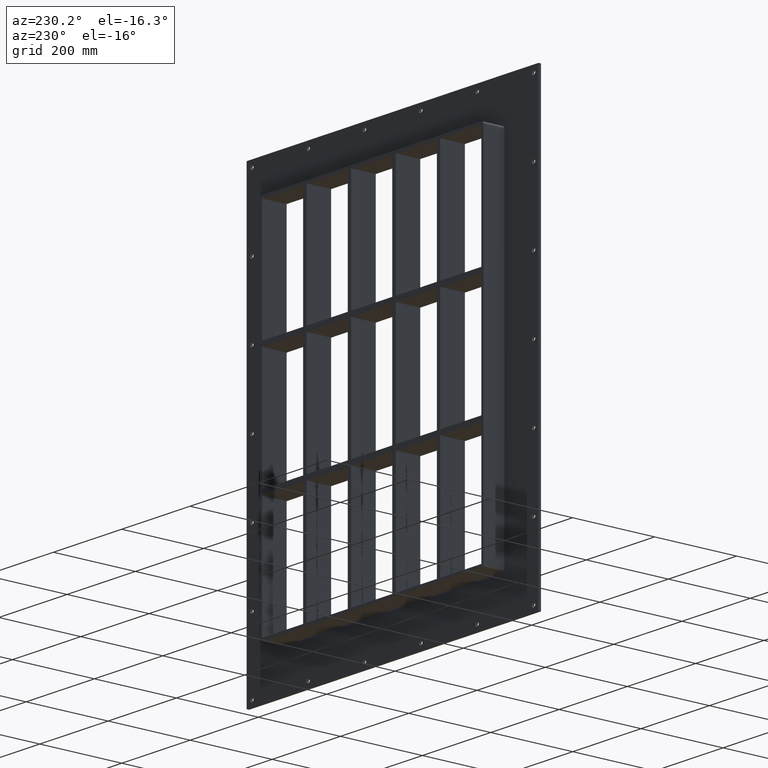
[diagram: clean part render]
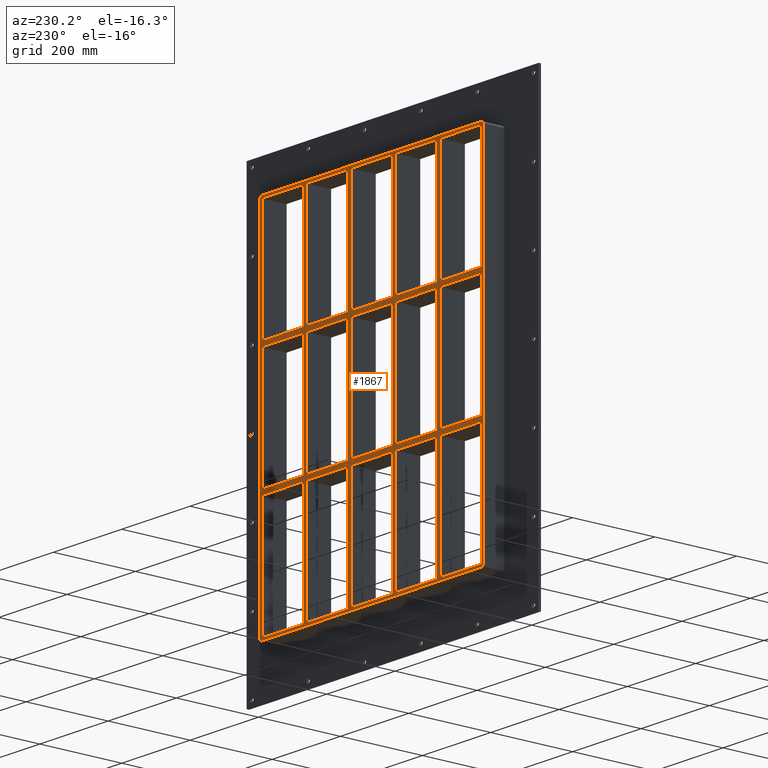
[diagram: same view with one face highlighted and labeled with its STEP entity id]
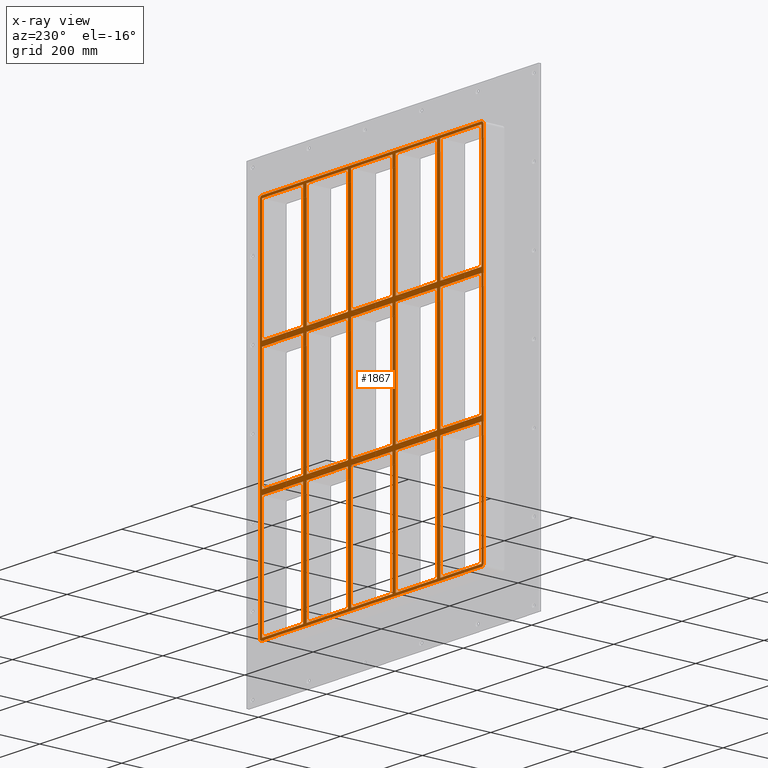
[diagram: x-ray of the same camera — body ghosted, the highlighted face saturated]
A machine part, auxiliary view. The second image highlights one B-rep face of the part: STEP entity #1867.
The next image is the same camera in x-ray: the body ghosted, the highlighted face saturated — about 0% of this face is hidden behind the body in this view.
In plain terms, the highlighted planar face has unit normal (0, 1, 0).
Its self-contained STEP definition (entity closure, byte-faithful):
#691=CARTESIAN_POINT('',(-200.75000000000131,57.0,138.99999999999068));
#692=VERTEX_POINT('',#691);
#707=CARTESIAN_POINT('',(-321.24999999999966,57.0,138.99999999999068));
#708=VERTEX_POINT('',#707);
#715=CARTESIAN_POINT('',(-200.75000000000136,57.0,138.99999999999068));
#716=DIRECTION('',(-1.0,0.0,0.0));
#717=VECTOR('',#716,120.49999999999841);
#718=LINE('',#715,#717);
#719=EDGE_CURVE('',#692,#708,#718,.T.);
#731=CARTESIAN_POINT('',(-70.250000000001265,57.0,138.99999999999071));
#732=VERTEX_POINT('',#731);
#747=CARTESIAN_POINT('',(-190.75000000000728,57.0,138.99999999999068));
#748=VERTEX_POINT('',#747);
#755=CARTESIAN_POINT('',(-70.250000000001251,57.0,138.99999999999068));
#756=DIRECTION('',(-1.0,0.0,0.0));
#757=VECTOR('',#756,120.50000000000603);
#758=LINE('',#755,#757);
#759=EDGE_CURVE('',#732,#748,#758,.T.);
#771=CARTESIAN_POINT('',(60.249999999998707,57.0,138.99999999999071));
#772=VERTEX_POINT('',#771);
#787=CARTESIAN_POINT('',(-60.250000000007304,57.0,138.99999999999071));
#788=VERTEX_POINT('',#787);
#795=CARTESIAN_POINT('',(60.249999999998693,57.0,138.99999999999068));
#796=DIRECTION('',(-1.0,0.0,0.0));
#797=VECTOR('',#796,120.50000000000597);
#798=LINE('',#795,#797);
#799=EDGE_CURVE('',#772,#788,#798,.T.);
#809=CARTESIAN_POINT('',(200.74999999999278,57.0,138.99999999999071));
#810=VERTEX_POINT('',#809);
#819=CARTESIAN_POINT('',(321.25000000000006,57.0,138.99999999999071));
#820=VERTEX_POINT('',#819);
#821=CARTESIAN_POINT('',(321.25,57.0,138.99999999999071));
#822=DIRECTION('',(-1.0,0.0,0.0));
#823=VECTOR('',#822,120.50000000000722);
#824=LINE('',#821,#823);
#825=EDGE_CURVE('',#820,#810,#824,.T.);
#851=CARTESIAN_POINT('',(190.74999999999875,57.0,138.99999999999071));
#852=VERTEX_POINT('',#851);
#867=CARTESIAN_POINT('',(70.249999999992738,57.0,138.99999999999071));
#868=VERTEX_POINT('',#867);
#875=CARTESIAN_POINT('',(190.74999999999875,57.0,138.99999999999071));
#876=DIRECTION('',(-1.0,0.0,0.0));
#877=VECTOR('',#876,120.50000000000603);
#878=LINE('',#875,#877);
#879=EDGE_CURVE('',#852,#868,#878,.T.);
#889=CARTESIAN_POINT('',(-200.75000000000131,57.0,150.99999999999994));
#890=VERTEX_POINT('',#889);
#899=CARTESIAN_POINT('',(-321.24999999999966,57.0,150.99999999999994));
#900=VERTEX_POINT('',#899);
#901=CARTESIAN_POINT('',(-321.24999999999966,57.0,150.99999999999994));
#902=DIRECTION('',(1.0,0.0,0.0));
#903=VECTOR('',#902,120.49999999999835);
#904=LINE('',#901,#903);
#905=EDGE_CURVE('',#900,#890,#904,.T.);
#931=CARTESIAN_POINT('',(200.74999999999278,57.0,150.99999999999994));
#932=VERTEX_POINT('',#931);
#947=CARTESIAN_POINT('',(321.25000000000006,57.0,150.99999999999994));
#948=VERTEX_POINT('',#947);
#955=CARTESIAN_POINT('',(200.74999999999272,57.0,150.99999999999994));
#956=DIRECTION('',(1.0,0.0,0.0));
#957=VECTOR('',#956,120.50000000000739);
#958=LINE('',#955,#957);
#959=EDGE_CURVE('',#932,#948,#958,.T.);
#969=CARTESIAN_POINT('',(-70.250000000001307,57.0,150.99999999999994));
#970=VERTEX_POINT('',#969);
#979=CARTESIAN_POINT('',(-190.75000000000728,57.0,150.99999999999994));
#980=VERTEX_POINT('',#979);
#981=CARTESIAN_POINT('',(-190.75000000000728,57.0,150.99999999999994));
#982=DIRECTION('',(1.0,0.0,0.0));
#983=VECTOR('',#982,120.50000000000597);
#984=LINE('',#981,#983);
#985=EDGE_CURVE('',#980,#970,#984,.T.);
#1009=CARTESIAN_POINT('',(60.249999999998707,57.0,150.99999999999994));
#1010=VERTEX_POINT('',#1009);
#1019=CARTESIAN_POINT('',(-60.250000000007269,57.0,150.99999999999994));
#1020=VERTEX_POINT('',#1019);
#1021=CARTESIAN_POINT('',(-60.250000000007276,57.0,150.99999999999994));
#1022=DIRECTION('',(1.0,0.0,0.0));
#1023=VECTOR('',#1022,120.50000000000597);
#1024=LINE('',#1021,#1023);
#1025=EDGE_CURVE('',#1020,#1010,#1024,.T.);
#1049=CARTESIAN_POINT('',(190.74999999999875,57.0,150.99999999999994));
#1050=VERTEX_POINT('',#1049);
#1059=CARTESIAN_POINT('',(70.249999999992738,57.0,150.99999999999994));
#1060=VERTEX_POINT('',#1059);
#1061=CARTESIAN_POINT('',(70.249999999992724,57.0,150.99999999999994));
#1062=DIRECTION('',(1.0,0.0,0.0));
#1063=VECTOR('',#1062,120.50000000000603);
#1064=LINE('',#1061,#1063);
#1065=EDGE_CURVE('',#1060,#1050,#1064,.T.);
#1090=CARTESIAN_POINT('',(-321.24999999999994,57.0,429.00000000000006));
#1091=VERTEX_POINT('',#1090);
#1092=CARTESIAN_POINT('',(-321.25,57.0,429.00000000000011));
#1093=DIRECTION('',(0.0,0.0,-1.0));
#1094=VECTOR('',#1093,278.00000000000011);
#1095=LINE('',#1092,#1094);
#1096=EDGE_CURVE('',#1091,#900,#1095,.T.);
#1121=CARTESIAN_POINT('',(321.25000000000006,57.0,-139.00000000000006));
#1122=VERTEX_POINT('',#1121);
#1123=CARTESIAN_POINT('',(321.25000000000006,57.0,-139.00000000000006));
#1124=DIRECTION('',(0.0,0.0,1.0));
#1125=VECTOR('',#1124,277.99999999999079);
#1126=LINE('',#1123,#1125);
#1127=EDGE_CURVE('',#1122,#820,#1126,.T.);
#1160=CARTESIAN_POINT('',(321.25000000000006,57.0,429.00000000000006));
#1161=VERTEX_POINT('',#1160);
#1168=CARTESIAN_POINT('',(321.25000000000006,57.0,150.99999999999994));
#1169=DIRECTION('',(0.0,0.0,1.0));
#1170=VECTOR('',#1169,278.00000000000011);
#1171=LINE('',#1168,#1170);
#1172=EDGE_CURVE('',#948,#1161,#1171,.T.);
#1191=CARTESIAN_POINT('',(190.74999999999872,57.0,429.00000000000006));
#1192=VERTEX_POINT('',#1191);
#1199=CARTESIAN_POINT('',(190.74999999999872,57.0,150.99999999999994));
#1200=DIRECTION('',(0.0,0.0,1.0));
#1201=VECTOR('',#1200,278.00000000000011);
#1202=LINE('',#1199,#1201);
#1203=EDGE_CURVE('',#1050,#1192,#1202,.T.);
#1214=CARTESIAN_POINT('',(200.74999999999278,57.0,429.00000000000006));
#1215=VERTEX_POINT('',#1214);
#1216=CARTESIAN_POINT('',(200.74999999999278,57.0,429.00000000000006));
#1217=DIRECTION('',(0.0,0.0,-1.0));
#1218=VECTOR('',#1217,278.00000000000011);
#1219=LINE('',#1216,#1218);
#1220=EDGE_CURVE('',#1215,#932,#1219,.T.);
#1253=CARTESIAN_POINT('',(60.249999999998671,57.0,429.00000000000006));
#1254=VERTEX_POINT('',#1253);
#1261=CARTESIAN_POINT('',(60.249999999998707,57.0,150.99999999999994));
#1262=DIRECTION('',(0.0,0.0,1.0));
#1263=VECTOR('',#1262,278.00000000000011);
#1264=LINE('',#1261,#1263);
#1265=EDGE_CURVE('',#1010,#1254,#1264,.T.);
#1276=CARTESIAN_POINT('',(70.249999999992738,57.0,429.00000000000006));
#1277=VERTEX_POINT('',#1276);
#1278=CARTESIAN_POINT('',(70.249999999992738,57.0,429.00000000000006));
#1279=DIRECTION('',(0.0,0.0,-1.0));
#1280=VECTOR('',#1279,278.00000000000011);
#1281=LINE('',#1278,#1280);
#1282=EDGE_CURVE('',#1277,#1060,#1281,.T.);
#1315=CARTESIAN_POINT('',(-70.250000000001336,57.0,429.00000000000006));
#1316=VERTEX_POINT('',#1315);
#1323=CARTESIAN_POINT('',(-70.250000000001293,57.0,150.99999999999994));
#1324=DIRECTION('',(0.0,0.0,1.0));
#1325=VECTOR('',#1324,278.00000000000011);
#1326=LINE('',#1323,#1325);
#1327=EDGE_CURVE('',#970,#1316,#1326,.T.);
#1338=CARTESIAN_POINT('',(-60.250000000007269,57.0,429.00000000000006));
#1339=VERTEX_POINT('',#1338);
#1340=CARTESIAN_POINT('',(-60.250000000007269,57.0,429.00000000000006));
#1341=DIRECTION('',(0.0,0.0,-1.0));
#1342=VECTOR('',#1341,278.00000000000011);
#1343=LINE('',#1340,#1342);
#1344=EDGE_CURVE('',#1339,#1020,#1343,.T.);
#1377=CARTESIAN_POINT('',(-200.75000000000134,57.0,429.00000000000006));
#1378=VERTEX_POINT('',#1377);
#1385=CARTESIAN_POINT('',(-200.75000000000134,57.0,150.99999999999994));
#1386=DIRECTION('',(0.0,0.0,1.0));
#1387=VECTOR('',#1386,278.00000000000011);
#1388=LINE('',#1385,#1387);
#1389=EDGE_CURVE('',#890,#1378,#1388,.T.);
#1400=CARTESIAN_POINT('',(-200.75000000000128,57.0,-139.00000000000006));
#1401=VERTEX_POINT('',#1400);
#1402=CARTESIAN_POINT('',(-200.75000000000128,57.0,-139.00000000000006));
#1403=DIRECTION('',(0.0,0.0,1.0));
#1404=VECTOR('',#1403,277.99999999999068);
#1405=LINE('',#1402,#1404);
#1406=EDGE_CURVE('',#1401,#692,#1405,.T.);
#1431=CARTESIAN_POINT('',(-190.75000000000728,57.0,429.00000000000006));
#1432=VERTEX_POINT('',#1431);
#1433=CARTESIAN_POINT('',(-190.75000000000728,57.0,429.00000000000006));
#1434=DIRECTION('',(0.0,0.0,-1.0));
#1435=VECTOR('',#1434,278.00000000000011);
#1436=LINE('',#1433,#1435);
#1437=EDGE_CURVE('',#1432,#980,#1436,.T.);
#1456=CARTESIAN_POINT('',(-7.118245E-014,57.0,7.830186E-014));
#1457=DIRECTION('',(0.0,1.0,0.0));
#1458=DIRECTION('',(0.0,0.0,1.0));
#1459=AXIS2_PLACEMENT_3D('',#1456,#1457,#1458);
#1460=PLANE('',#1459);
#1461=CARTESIAN_POINT('',(321.25,57.0,-435.0));
#1462=VERTEX_POINT('',#1461);
#1463=CARTESIAN_POINT('',(327.24999999999994,57.0,-428.99999999999989));
#1464=VERTEX_POINT('',#1463);
#1465=CARTESIAN_POINT('',(321.25,57.0,-428.99999999999989));
#1466=DIRECTION('',(0.0,-1.0,0.0));
#1467=DIRECTION('',(0.707106781186539,0.0,-0.707106781186556));
#1468=AXIS2_PLACEMENT_3D('',#1465,#1466,#1467);
#1469=CIRCLE('',#1468,6.000000000000001);
#1470=EDGE_CURVE('',#1462,#1464,#1469,.T.);
#1471=ORIENTED_EDGE('',*,*,#1470,.F.);
#1472=CARTESIAN_POINT('',(-321.25,57.0,-435.0));
#1473=VERTEX_POINT('',#1472);
#1474=CARTESIAN_POINT('',(321.25,57.0,-435.0));
#1475=DIRECTION('',(-1.0,0.0,0.0));
#1476=VECTOR('',#1475,642.5);
#1477=LINE('',#1474,#1476);
#1478=EDGE_CURVE('',#1462,#1473,#1477,.T.);
#1479=ORIENTED_EDGE('',*,*,#1478,.T.);
#1480=CARTESIAN_POINT('',(-327.25000000000011,57.0,-429.00000000000006));
#1481=VERTEX_POINT('',#1480);
#1482=CARTESIAN_POINT('',(-321.25,57.0,-429.00000000000006));
#1483=DIRECTION('',(0.0,-1.0,0.0));
#1484=DIRECTION('',(-0.707106781186556,0.0,-0.707106781186539));
#1485=AXIS2_PLACEMENT_3D('',#1482,#1483,#1484);
#1486=CIRCLE('',#1485,6.000000000000001);
#1487=EDGE_CURVE('',#1481,#1473,#1486,.T.);
#1488=ORIENTED_EDGE('',*,*,#1487,.F.);
#1489=CARTESIAN_POINT('',(-327.25000000000011,57.0,429.00000000000006));
#1490=VERTEX_POINT('',#1489);
#1491=CARTESIAN_POINT('',(-327.25000000000011,57.0,-429.00000000000006));
#1492=DIRECTION('',(0.0,0.0,1.0));
#1493=VECTOR('',#1492,858.0);
#1494=LINE('',#1491,#1493);
#1495=EDGE_CURVE('',#1481,#1490,#1494,.T.);
#1496=ORIENTED_EDGE('',*,*,#1495,.T.);
#1497=CARTESIAN_POINT('',(-321.25000000000011,57.0,435.00000000000011));
#1498=VERTEX_POINT('',#1497);
#1499=CARTESIAN_POINT('',(-321.25000000000011,57.0,429.00000000000006));
#1500=DIRECTION('',(0.0,-1.0,0.0));
#1501=DIRECTION('',(-0.707106781186539,0.0,0.707106781186556));
#1502=AXIS2_PLACEMENT_3D('',#1499,#1500,#1501);
#1503=CIRCLE('',#1502,6.000000000000001);
#1504=EDGE_CURVE('',#1498,#1490,#1503,.T.);
#1505=ORIENTED_EDGE('',*,*,#1504,.F.);
#1506=CARTESIAN_POINT('',(321.24999999999989,57.0,435.00000000000011));
#1507=VERTEX_POINT('',#1506);
#1508=CARTESIAN_POINT('',(-321.25000000000017,57.0,435.00000000000011));
#1509=DIRECTION('',(1.0,0.0,0.0));
#1510=VECTOR('',#1509,642.5);
#1511=LINE('',#1508,#1510);
#1512=EDGE_CURVE('',#1498,#1507,#1511,.T.);
#1513=ORIENTED_EDGE('',*,*,#1512,.T.);
#1514=CARTESIAN_POINT('',(327.24999999999994,57.0,429.00000000000011));
#1515=VERTEX_POINT('',#1514);
#1516=CARTESIAN_POINT('',(321.24999999999989,57.0,429.00000000000011));
#1517=DIRECTION('',(0.0,-1.0,0.0));
#1518=DIRECTION('',(0.707106781186547,0.0,0.707106781186547));
#1519=AXIS2_PLACEMENT_3D('',#1516,#1517,#1518);
#1520=CIRCLE('',#1519,6.0);
#1521=EDGE_CURVE('',#1515,#1507,#1520,.T.);
#1522=ORIENTED_EDGE('',*,*,#1521,.F.);
#1523=CARTESIAN_POINT('',(327.24999999999994,57.0,429.00000000000011));
#1524=DIRECTION('',(0.0,0.0,-1.0));
#1525=VECTOR('',#1524,858.0);
#1526=LINE('',#1523,#1525);
#1527=EDGE_CURVE('',#1515,#1464,#1526,.T.);
#1528=ORIENTED_EDGE('',*,*,#1527,.T.);
#1529=EDGE_LOOP('',(#1471,#1479,#1488,#1496,#1505,#1513,#1522,#1528));
#1530=FACE_OUTER_BOUND('',#1529,.T.);
#1531=CARTESIAN_POINT('',(-321.24999999999966,57.0,-139.00000000000006));
#1532=VERTEX_POINT('',#1531);
#1533=CARTESIAN_POINT('',(-321.25,57.0,138.99999999999068));
#1534=DIRECTION('',(0.0,0.0,-1.0));
#1535=VECTOR('',#1534,277.99999999999073);
#1536=LINE('',#1533,#1535);
#1537=EDGE_CURVE('',#708,#1532,#1536,.T.);
#1538=ORIENTED_EDGE('',*,*,#1537,.T.);
#1539=CARTESIAN_POINT('',(-321.24999999999966,57.0,-139.00000000000006));
#1540=DIRECTION('',(1.0,0.0,0.0));
#1541=VECTOR('',#1540,120.49999999999838);
#1542=LINE('',#1539,#1541);
#1543=EDGE_CURVE('',#1532,#1401,#1542,.T.);
#1544=ORIENTED_EDGE('',*,*,#1543,.T.);
#1545=ORIENTED_EDGE('',*,*,#1406,.T.);
#1546=ORIENTED_EDGE('',*,*,#719,.T.);
#1547=EDGE_LOOP('',(#1538,#1544,#1545,#1546));
#1548=FACE_BOUND('',#1547,.T.);
#1549=ORIENTED_EDGE('',*,*,#1172,.T.);
#1550=CARTESIAN_POINT('',(321.25000000000011,57.0,429.00000000000006));
#1551=DIRECTION('',(-1.0,0.0,0.0));
#1552=VECTOR('',#1551,120.50000000000736);
#1553=LINE('',#1550,#1552);
#1554=EDGE_CURVE('',#1161,#1215,#1553,.T.);
#1555=ORIENTED_EDGE('',*,*,#1554,.T.);
#1556=ORIENTED_EDGE('',*,*,#1220,.T.);
#1557=ORIENTED_EDGE('',*,*,#959,.T.);
#1558=EDGE_LOOP('',(#1549,#1555,#1556,#1557));
#1559=FACE_BOUND('',#1558,.T.);
#1560=ORIENTED_EDGE('',*,*,#1203,.T.);
#1561=CARTESIAN_POINT('',(190.74999999999872,57.0,429.00000000000006));
#1562=DIRECTION('',(-1.0,0.0,0.0));
#1563=VECTOR('',#1562,120.50000000000597);
#1564=LINE('',#1561,#1563);
#1565=EDGE_CURVE('',#1192,#1277,#1564,.T.);
#1566=ORIENTED_EDGE('',*,*,#1565,.T.);
#1567=ORIENTED_EDGE('',*,*,#1282,.T.);
#1568=ORIENTED_EDGE('',*,*,#1065,.T.);
#1569=EDGE_LOOP('',(#1560,#1566,#1567,#1568));
#1570=FACE_BOUND('',#1569,.T.);
#1571=ORIENTED_EDGE('',*,*,#1265,.T.);
#1572=CARTESIAN_POINT('',(60.249999999998664,57.0,429.00000000000006));
#1573=DIRECTION('',(-1.0,0.0,0.0));
#1574=VECTOR('',#1573,120.50000000000593);
#1575=LINE('',#1572,#1574);
#1576=EDGE_CURVE('',#1254,#1339,#1575,.T.);
#1577=ORIENTED_EDGE('',*,*,#1576,.T.);
#1578=ORIENTED_EDGE('',*,*,#1344,.T.);
#1579=ORIENTED_EDGE('',*,*,#1025,.T.);
#1580=EDGE_LOOP('',(#1571,#1577,#1578,#1579));
#1581=FACE_BOUND('',#1580,.T.);
#1582=ORIENTED_EDGE('',*,*,#1327,.T.);
#1583=CARTESIAN_POINT('',(-70.250000000001336,57.0,429.00000000000006));
#1584=DIRECTION('',(-1.0,0.0,0.0));
#1585=VECTOR('',#1584,120.50000000000594);
#1586=LINE('',#1583,#1585);
#1587=EDGE_CURVE('',#1316,#1432,#1586,.T.);
#1588=ORIENTED_EDGE('',*,*,#1587,.T.);
#1589=ORIENTED_EDGE('',*,*,#1437,.T.);
#1590=ORIENTED_EDGE('',*,*,#985,.T.);
#1591=EDGE_LOOP('',(#1582,#1588,#1589,#1590));
#1592=FACE_BOUND('',#1591,.T.);
#1593=ORIENTED_EDGE('',*,*,#825,.T.);
#1594=CARTESIAN_POINT('',(200.74999999999278,57.0,-139.00000000000006));
#1595=VERTEX_POINT('',#1594);
#1596=CARTESIAN_POINT('',(200.74999999999278,57.0,138.99999999999073));
#1597=DIRECTION('',(0.0,0.0,-1.0));
#1598=VECTOR('',#1597,277.99999999999079);
#1599=LINE('',#1596,#1598);
#1600=EDGE_CURVE('',#810,#1595,#1599,.T.);
#1601=ORIENTED_EDGE('',*,*,#1600,.T.);
#1602=CARTESIAN_POINT('',(200.74999999999272,57.0,-139.00000000000006));
#1603=DIRECTION('',(1.0,0.0,0.0));
#1604=VECTOR('',#1603,120.50000000000739);
#1605=LINE('',#1602,#1604);
#1606=EDGE_CURVE('',#1595,#1122,#1605,.T.);
#1607=ORIENTED_EDGE('',*,*,#1606,.T.);
#1608=ORIENTED_EDGE('',*,*,#1127,.T.);
#1609=EDGE_LOOP('',(#1593,#1601,#1607,#1608));
#1610=FACE_BOUND('',#1609,.T.);
#1611=ORIENTED_EDGE('',*,*,#879,.T.);
#1612=CARTESIAN_POINT('',(70.249999999992738,57.0,-139.00000000000006));
#1613=VERTEX_POINT('',#1612);
#1614=CARTESIAN_POINT('',(70.249999999992738,57.0,138.99999999999068));
#1615=DIRECTION('',(0.0,0.0,-1.0));
#1616=VECTOR('',#1615,277.99999999999073);
#1617=LINE('',#1614,#1616);
#1618=EDGE_CURVE('',#868,#1613,#1617,.T.);
#1619=ORIENTED_EDGE('',*,*,#1618,.T.);
#1620=CARTESIAN_POINT('',(190.74999999999878,57.0,-139.00000000000006));
#1621=VERTEX_POINT('',#1620);
#1622=CARTESIAN_POINT('',(70.249999999992724,57.0,-139.00000000000006));
#1623=DIRECTION('',(1.0,0.0,0.0));
#1624=VECTOR('',#1623,120.50000000000608);
#1625=LINE('',#1622,#1624);
#1626=EDGE_CURVE('',#1613,#1621,#1625,.T.);
#1627=ORIENTED_EDGE('',*,*,#1626,.T.);
#1628=CARTESIAN_POINT('',(190.74999999999878,57.0,-139.00000000000006));
#1629=DIRECTION('',(0.0,0.0,1.0));
#1630=VECTOR('',#1629,277.99999999999068);
#1631=LINE('',#1628,#1630);
#1632=EDGE_CURVE('',#1621,#852,#1631,.T.);
#1633=ORIENTED_EDGE('',*,*,#1632,.T.);
#1634=EDGE_LOOP('',(#1611,#1619,#1627,#1633));
#1635=FACE_BOUND('',#1634,.T.);
#1636=ORIENTED_EDGE('',*,*,#799,.T.);
#1637=CARTESIAN_POINT('',(-60.250000000007269,57.0,-139.00000000000006));
#1638=VERTEX_POINT('',#1637);
#1639=CARTESIAN_POINT('',(-60.250000000007269,57.0,138.99999999999068));
#1640=DIRECTION('',(0.0,0.0,-1.0));
#1641=VECTOR('',#1640,277.99999999999073);
#1642=LINE('',#1639,#1641);
#1643=EDGE_CURVE('',#788,#1638,#1642,.T.);
#1644=ORIENTED_EDGE('',*,*,#1643,.T.);
#1645=CARTESIAN_POINT('',(60.249999999998742,57.0,-139.00000000000006));
#1646=VERTEX_POINT('',#1645);
#1647=CARTESIAN_POINT('',(-60.250000000007276,57.0,-139.00000000000006));
#1648=DIRECTION('',(1.0,0.0,0.0));
#1649=VECTOR('',#1648,120.50000000000597);
#1650=LINE('',#1647,#1649);
#1651=EDGE_CURVE('',#1638,#1646,#1650,.T.);
#1652=ORIENTED_EDGE('',*,*,#1651,.T.);
#1653=CARTESIAN_POINT('',(60.249999999998742,57.0,-139.00000000000006));
#1654=DIRECTION('',(0.0,0.0,1.0));
#1655=VECTOR('',#1654,277.99999999999068);
#1656=LINE('',#1653,#1655);
#1657=EDGE_CURVE('',#1646,#772,#1656,.T.);
#1658=ORIENTED_EDGE('',*,*,#1657,.T.);
#1659=EDGE_LOOP('',(#1636,#1644,#1652,#1658));
#1660=FACE_BOUND('',#1659,.T.);
#1661=ORIENTED_EDGE('',*,*,#759,.T.);
#1662=CARTESIAN_POINT('',(-190.75000000000728,57.0,-139.00000000000006));
#1663=VERTEX_POINT('',#1662);
#1664=CARTESIAN_POINT('',(-190.75000000000728,57.0,138.99999999999068));
#1665=DIRECTION('',(0.0,0.0,-1.0));
#1666=VECTOR('',#1665,277.99999999999073);
#1667=LINE('',#1664,#1666);
#1668=EDGE_CURVE('',#748,#1663,#1667,.T.);
#1669=ORIENTED_EDGE('',*,*,#1668,.T.);
#1670=CARTESIAN_POINT('',(-70.250000000001265,57.0,-139.00000000000006));
#1671=VERTEX_POINT('',#1670);
#1672=CARTESIAN_POINT('',(-190.75000000000728,57.0,-139.00000000000006));
#1673=DIRECTION('',(1.0,0.0,0.0));
#1674=VECTOR('',#1673,120.500000000006);
#1675=LINE('',#1672,#1674);
#1676=EDGE_CURVE('',#1663,#1671,#1675,.T.);
#1677=ORIENTED_EDGE('',*,*,#1676,.T.);
#1678=CARTESIAN_POINT('',(-70.250000000001265,57.0,-139.00000000000006));
#1679=DIRECTION('',(0.0,0.0,1.0));
#1680=VECTOR('',#1679,277.99999999999068);
#1681=LINE('',#1678,#1680);
#1682=EDGE_CURVE('',#1671,#732,#1681,.T.);
#1683=ORIENTED_EDGE('',*,*,#1682,.T.);
#1684=EDGE_LOOP('',(#1661,#1669,#1677,#1683));
#1685=FACE_BOUND('',#1684,.T.);
#1686=CARTESIAN_POINT('',(-321.24999999999966,57.0,-151.00000000000932));
#1687=VERTEX_POINT('',#1686);
#1688=CARTESIAN_POINT('',(-321.24999999999994,57.0,-429.00000000000006));
#1689=VERTEX_POINT('',#1688);
#1690=CARTESIAN_POINT('',(-321.25,57.0,-151.00000000000932));
#1691=DIRECTION('',(0.0,0.0,-1.0));
#1692=VECTOR('',#1691,277.99999999999073);
#1693=LINE('',#1690,#1692);
#1694=EDGE_CURVE('',#1687,#1689,#1693,.T.);
#1695=ORIENTED_EDGE('',*,*,#1694,.T.);
#1696=CARTESIAN_POINT('',(-200.75000000000125,57.0,-429.00000000000006));
#1697=VERTEX_POINT('',#1696);
#1698=CARTESIAN_POINT('',(-321.24999999999994,57.0,-429.00000000000006));
#1699=DIRECTION('',(1.0,0.0,0.0));
#1700=VECTOR('',#1699,120.49999999999869);
#1701=LINE('',#1698,#1700);
#1702=EDGE_CURVE('',#1689,#1697,#1701,.T.);
#1703=ORIENTED_EDGE('',*,*,#1702,.T.);
#1704=CARTESIAN_POINT('',(-200.75000000000125,57.0,-151.00000000000932));
#1705=VERTEX_POINT('',#1704);
#1706=CARTESIAN_POINT('',(-200.75000000000125,57.0,-429.00000000000006));
#1707=DIRECTION('',(0.0,0.0,1.0));
#1708=VECTOR('',#1707,277.99999999999073);
#1709=LINE('',#1706,#1708);
#1710=EDGE_CURVE('',#1697,#1705,#1709,.T.);
#1711=ORIENTED_EDGE('',*,*,#1710,.T.);
#1712=CARTESIAN_POINT('',(-200.75000000000125,57.0,-151.00000000000932));
#1713=DIRECTION('',(-1.0,0.0,0.0));
#1714=VECTOR('',#1713,120.49999999999852);
#1715=LINE('',#1712,#1714);
#1716=EDGE_CURVE('',#1705,#1687,#1715,.T.);
#1717=ORIENTED_EDGE('',*,*,#1716,.T.);
#1718=EDGE_LOOP('',(#1695,#1703,#1711,#1717));
#1719=FACE_BOUND('',#1718,.T.);
#1720=CARTESIAN_POINT('',(-70.250000000001222,57.0,-429.00000000000006));
#1721=VERTEX_POINT('',#1720);
#1722=CARTESIAN_POINT('',(-70.250000000001265,57.0,-151.00000000000932));
#1723=VERTEX_POINT('',#1722);
#1724=CARTESIAN_POINT('',(-70.250000000001222,57.0,-429.00000000000006));
#1725=DIRECTION('',(0.0,0.0,1.0));
#1726=VECTOR('',#1725,277.99999999999073);
#1727=LINE('',#1724,#1726);
#1728=EDGE_CURVE('',#1721,#1723,#1727,.T.);
#1729=ORIENTED_EDGE('',*,*,#1728,.T.);
#1730=CARTESIAN_POINT('',(-190.75000000000728,57.0,-151.00000000000932));
#1731=VERTEX_POINT('',#1730);
#1732=CARTESIAN_POINT('',(-70.250000000001251,57.0,-151.00000000000932));
#1733=DIRECTION('',(-1.0,0.0,0.0));
#1734=VECTOR('',#1733,120.50000000000603);
#1735=LINE('',#1732,#1734);
#1736=EDGE_CURVE('',#1723,#1731,#1735,.T.);
#1737=ORIENTED_EDGE('',*,*,#1736,.T.);
#1738=CARTESIAN_POINT('',(-190.75000000000728,57.0,-428.99999999998431));
#1739=VERTEX_POINT('',#1738);
#1740=CARTESIAN_POINT('',(-190.75000000000728,57.0,-151.00000000000927));
#1741=DIRECTION('',(0.0,0.0,-1.0));
#1742=VECTOR('',#1741,277.99999999997499);
#1743=LINE('',#1740,#1742);
#1744=EDGE_CURVE('',#1731,#1739,#1743,.T.);
#1745=ORIENTED_EDGE('',*,*,#1744,.T.);
#1746=CARTESIAN_POINT('',(-190.75000000000728,57.0,-429.00000000000006));
#1747=DIRECTION('',(1.0,0.0,0.0));
#1748=VECTOR('',#1747,120.50000000000605);
#1749=LINE('',#1746,#1748);
#1750=EDGE_CURVE('',#1739,#1721,#1749,.T.);
#1751=ORIENTED_EDGE('',*,*,#1750,.T.);
#1752=EDGE_LOOP('',(#1729,#1737,#1745,#1751));
#1753=FACE_BOUND('',#1752,.T.);
#1754=CARTESIAN_POINT('',(60.249999999998778,57.0,-429.00000000000006));
#1755=VERTEX_POINT('',#1754);
#1756=CARTESIAN_POINT('',(60.249999999998742,57.0,-151.00000000000929));
#1757=VERTEX_POINT('',#1756);
#1758=CARTESIAN_POINT('',(60.249999999998778,57.0,-429.00000000000006));
#1759=DIRECTION('',(0.0,0.0,1.0));
#1760=VECTOR('',#1759,277.99999999999079);
#1761=LINE('',#1758,#1760);
#1762=EDGE_CURVE('',#1755,#1757,#1761,.T.);
#1763=ORIENTED_EDGE('',*,*,#1762,.T.);
#1764=CARTESIAN_POINT('',(-60.250000000007269,57.0,-151.00000000000932));
#1765=VERTEX_POINT('',#1764);
#1766=CARTESIAN_POINT('',(60.249999999998749,57.0,-151.00000000000932));
#1767=DIRECTION('',(-1.0,0.0,0.0));
#1768=VECTOR('',#1767,120.50000000000603);
#1769=LINE('',#1766,#1768);
#1770=EDGE_CURVE('',#1757,#1765,#1769,.T.);
#1771=ORIENTED_EDGE('',*,*,#1770,.T.);
#1772=CARTESIAN_POINT('',(-60.250000000007269,57.0,-428.99999999998431));
#1773=VERTEX_POINT('',#1772);
#1774=CARTESIAN_POINT('',(-60.250000000007269,57.0,-151.00000000000927));
#1775=DIRECTION('',(0.0,0.0,-1.0));
#1776=VECTOR('',#1775,277.99999999997499);
#1777=LINE('',#1774,#1776);
#1778=EDGE_CURVE('',#1765,#1773,#1777,.T.);
#1779=ORIENTED_EDGE('',*,*,#1778,.T.);
#1780=CARTESIAN_POINT('',(-60.250000000007276,57.0,-429.00000000000006));
#1781=DIRECTION('',(1.0,0.0,0.0));
#1782=VECTOR('',#1781,120.50000000000605);
#1783=LINE('',#1780,#1782);
#1784=EDGE_CURVE('',#1773,#1755,#1783,.T.);
#1785=ORIENTED_EDGE('',*,*,#1784,.T.);
#1786=EDGE_LOOP('',(#1763,#1771,#1779,#1785));
#1787=FACE_BOUND('',#1786,.T.);
#1788=CARTESIAN_POINT('',(190.74999999999881,57.0,-429.00000000000006));
#1789=VERTEX_POINT('',#1788);
#1790=CARTESIAN_POINT('',(190.74999999999878,57.0,-151.00000000000929));
#1791=VERTEX_POINT('',#1790);
#1792=CARTESIAN_POINT('',(190.74999999999881,57.0,-429.00000000000006));
#1793=DIRECTION('',(0.0,0.0,1.0));
#1794=VECTOR('',#1793,277.99999999999079);
#1795=LINE('',#1792,#1794);
#1796=EDGE_CURVE('',#1789,#1791,#1795,.T.);
#1797=ORIENTED_EDGE('',*,*,#1796,.T.);
#1798=CARTESIAN_POINT('',(70.249999999992738,57.0,-151.00000000000932));
#1799=VERTEX_POINT('',#1798);
#1800=CARTESIAN_POINT('',(190.74999999999878,57.0,-151.00000000000929));
#1801=DIRECTION('',(-1.0,0.0,0.0));
#1802=VECTOR('',#1801,120.50000000000605);
#1803=LINE('',#1800,#1802);
#1804=EDGE_CURVE('',#1791,#1799,#1803,.T.);
#1805=ORIENTED_EDGE('',*,*,#1804,.T.);
#1806=CARTESIAN_POINT('',(70.249999999992738,57.0,-428.99999999998431));
#1807=VERTEX_POINT('',#1806);
#1808=CARTESIAN_POINT('',(70.249999999992738,57.0,-151.00000000000927));
#1809=DIRECTION('',(0.0,0.0,-1.0));
#1810=VECTOR('',#1809,277.99999999997499);
#1811=LINE('',#1808,#1810);
#1812=EDGE_CURVE('',#1799,#1807,#1811,.T.);
#1813=ORIENTED_EDGE('',*,*,#1812,.T.);
#1814=CARTESIAN_POINT('',(70.249999999992738,57.0,-429.00000000000006));
#1815=DIRECTION('',(1.0,0.0,0.0));
#1816=VECTOR('',#1815,120.50000000000607);
#1817=LINE('',#1814,#1816);
#1818=EDGE_CURVE('',#1807,#1789,#1817,.T.);
#1819=ORIENTED_EDGE('',*,*,#1818,.T.);
#1820=EDGE_LOOP('',(#1797,#1805,#1813,#1819));
#1821=FACE_BOUND('',#1820,.T.);
#1822=ORIENTED_EDGE('',*,*,#905,.T.);
#1823=ORIENTED_EDGE('',*,*,#1389,.T.);
#1824=CARTESIAN_POINT('',(-200.75000000000134,57.0,429.00000000000006));
#1825=DIRECTION('',(-1.0,0.0,0.0));
#1826=VECTOR('',#1825,120.49999999999855);
#1827=LINE('',#1824,#1826);
#1828=EDGE_CURVE('',#1378,#1091,#1827,.T.);
#1829=ORIENTED_EDGE('',*,*,#1828,.T.);
#1830=ORIENTED_EDGE('',*,*,#1096,.T.);
#1831=EDGE_LOOP('',(#1822,#1823,#1829,#1830));
#1832=FACE_BOUND('',#1831,.T.);
#1833=CARTESIAN_POINT('',(200.74999999999278,57.0,-428.99999999998431));
#1834=VERTEX_POINT('',#1833);
#1835=CARTESIAN_POINT('',(321.25000000000006,57.0,-429.00000000000006));
#1836=VERTEX_POINT('',#1835);
#1837=CARTESIAN_POINT('',(200.74999999999278,57.0,-429.00000000000006));
#1838=DIRECTION('',(1.0,0.0,0.0));
#1839=VECTOR('',#1838,120.50000000000728);
#1840=LINE('',#1837,#1839);
#1841=EDGE_CURVE('',#1834,#1836,#1840,.T.);
#1842=ORIENTED_EDGE('',*,*,#1841,.T.);
#1843=CARTESIAN_POINT('',(321.25000000000006,57.0,-151.00000000000929));
#1844=VERTEX_POINT('',#1843);
#1845=CARTESIAN_POINT('',(321.25000000000006,57.0,-429.00000000000006));
#1846=DIRECTION('',(0.0,0.0,1.0));
#1847=VECTOR('',#1846,277.99999999999079);
#1848=LINE('',#1845,#1847);
#1849=EDGE_CURVE('',#1836,#1844,#1848,.T.);
#1850=ORIENTED_EDGE('',*,*,#1849,.T.);
#1851=CARTESIAN_POINT('',(200.74999999999278,57.0,-151.00000000000932));
#1852=VERTEX_POINT('',#1851);
#1853=CARTESIAN_POINT('',(321.25,57.0,-151.00000000000929));
#1854=DIRECTION('',(-1.0,0.0,0.0));
#1855=VECTOR('',#1854,120.50000000000722);
#1856=LINE('',#1853,#1855);
#1857=EDGE_CURVE('',#1844,#1852,#1856,.T.);
#1858=ORIENTED_EDGE('',*,*,#1857,.T.);
#1859=CARTESIAN_POINT('',(200.74999999999278,57.0,-151.00000000000927));
#1860=DIRECTION('',(0.0,0.0,-1.0));
#1861=VECTOR('',#1860,277.99999999997499);
#1862=LINE('',#1859,#1861);
#1863=EDGE_CURVE('',#1852,#1834,#1862,.T.);
#1864=ORIENTED_EDGE('',*,*,#1863,.T.);
#1865=EDGE_LOOP('',(#1842,#1850,#1858,#1864));
#1866=FACE_BOUND('',#1865,.T.);
#1867=ADVANCED_FACE('',(#1530,#1548,#1559,#1570,#1581,#1592,#1610,#1635,#1660,#1685,#1719,#1753,#1787,#1821,#1832,#1866),#1460,.T.);